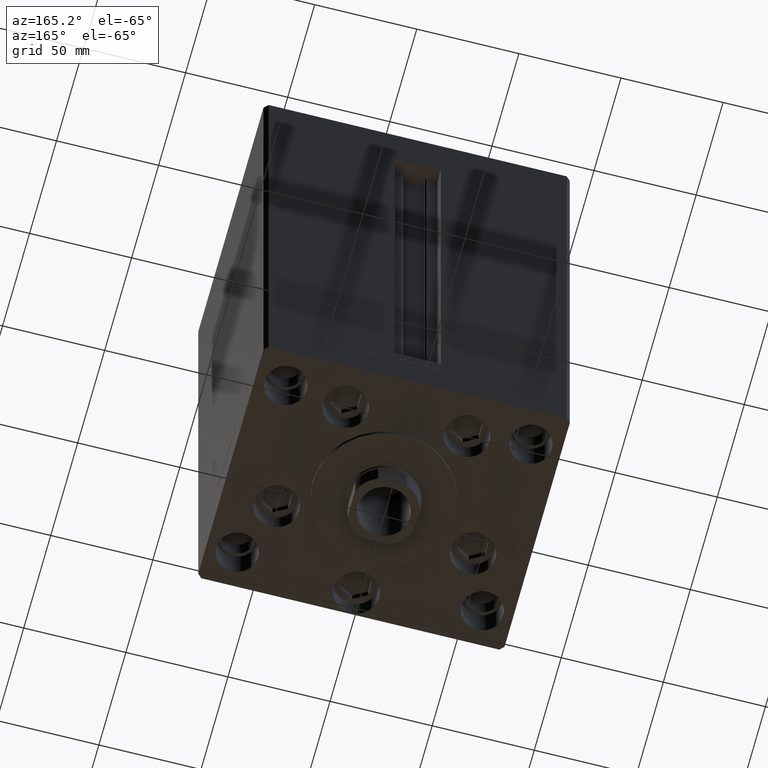
[diagram: clean part render]
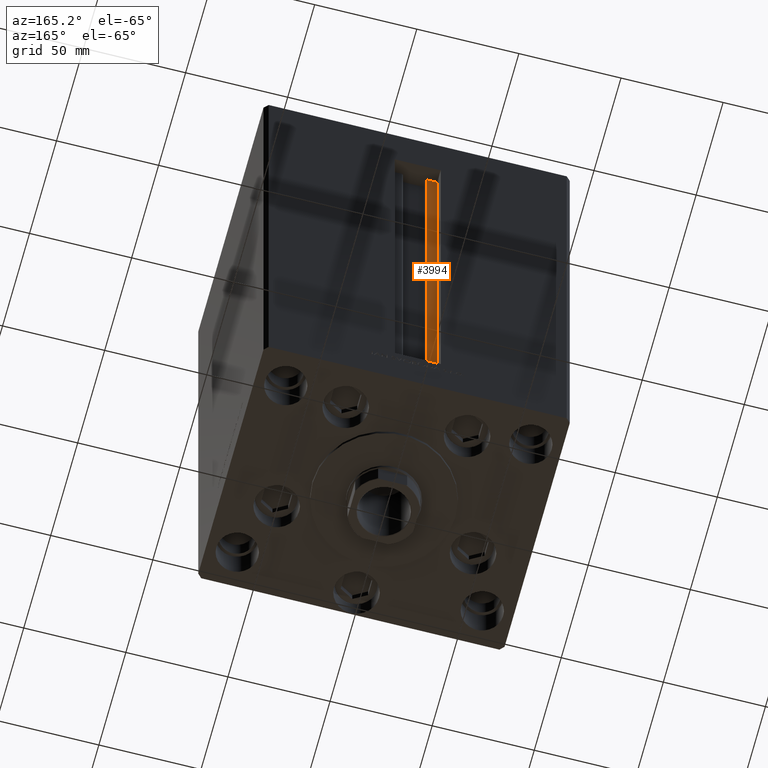
[diagram: same view with one face highlighted and labeled with its STEP entity id]
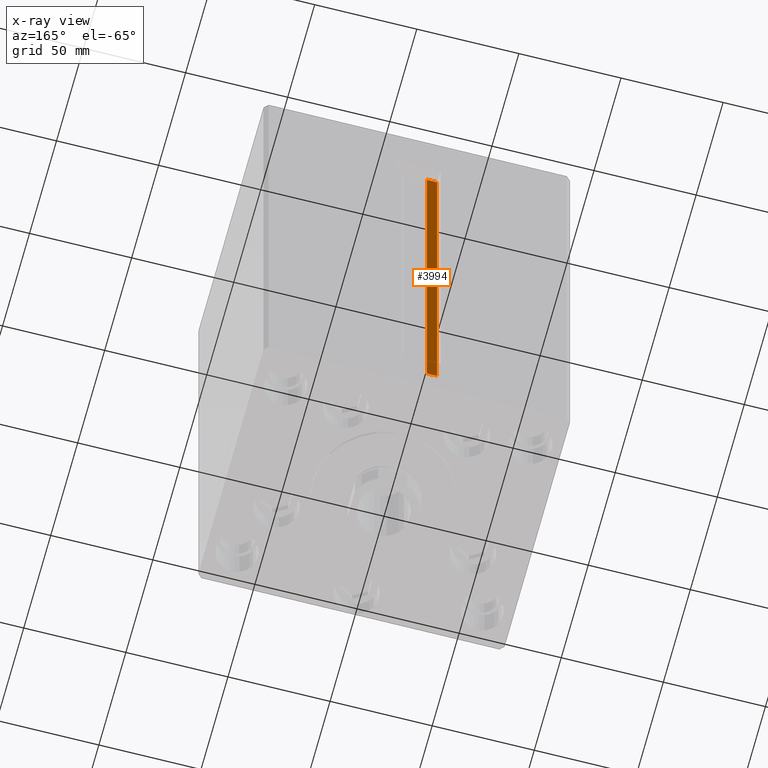
[diagram: x-ray of the same camera — body ghosted, the highlighted face saturated]
A machine part, auxiliary view. The second image highlights one B-rep face of the part: STEP entity #3994.
The next image is the same camera in x-ray: the body ghosted, the highlighted face saturated — about 0% of this face is hidden behind the body in this view.
In plain terms, the highlighted planar face has unit normal (0, -1, 0).
Its self-contained STEP definition (entity closure, byte-faithful):
#347 = DIRECTION ( 'NONE',  ( 1.000000000000000000, -0.000000000000000000, -0.000000000000000000 ) ) ;
#884 = DIRECTION ( 'NONE',  ( 0.000000000000000000, 0.000000000000000000, -1.000000000000000000 ) ) ;
#2376 = VERTEX_POINT ( 'NONE', #5958 ) ;
#3125 = FACE_OUTER_BOUND ( 'NONE', #30242, .T. ) ;
#3607 = CARTESIAN_POINT ( 'NONE',  ( -6.183333333334001480, 55.99999999999999289, 0.000000000000000000 ) ) ;
#3994 = ADVANCED_FACE ( 'NONE', ( #3125 ), #40278, .F. ) ;
#5308 = CARTESIAN_POINT ( 'NONE',  ( -6.183333333334001480, 55.99999999999999289, 0.000000000000000000 ) ) ;
#5958 = CARTESIAN_POINT ( 'NONE',  ( -6.183333333334001480, 55.99999999999999289, 0.000000000000000000 ) ) ;
#6802 = VECTOR ( 'NONE', #17207, 1000.000000000000000 ) ;
#8064 = DIRECTION ( 'NONE',  ( -1.000000000000000000, 0.000000000000000000, 0.000000000000000000 ) ) ;
#9837 = ORIENTED_EDGE ( 'NONE', *, *, #21738, .F. ) ;
#11781 = CARTESIAN_POINT ( 'NONE',  ( -6.183333333334001480, 55.99999999999999289, 217.0000000000000000 ) ) ;
#11984 = VERTEX_POINT ( 'NONE', #37346 ) ;
#13914 = CARTESIAN_POINT ( 'NONE',  ( -11.25000000000000178, 55.99999999999999289, 217.0000000000000000 ) ) ;
#14187 = DIRECTION ( 'NONE',  ( -0.000000000000000000, -0.000000000000000000, 1.000000000000000000 ) ) ;
#14212 = LINE ( 'NONE', #24873, #6802 ) ;
#14394 = EDGE_CURVE ( 'NONE', #11984, #39744, #14212, .T. ) ;
#16882 = ORIENTED_EDGE ( 'NONE', *, *, #14394, .T. ) ;
#17207 = DIRECTION ( 'NONE',  ( -0.000000000000000000, -0.000000000000000000, 1.000000000000000000 ) ) ;
#19204 = DIRECTION ( 'NONE',  ( 0.000000000000000000, -1.000000000000000000, -0.000000000000000000 ) ) ;
#20492 = EDGE_CURVE ( 'NONE', #42602, #39744, #30366, .T. ) ;
#21738 = EDGE_CURVE ( 'NONE', #11984, #2376, #31548, .T. ) ;
#23865 = CARTESIAN_POINT ( 'NONE',  ( -6.183333333334001480, 55.99999999999999289, 0.000000000000000000 ) ) ;
#24873 = CARTESIAN_POINT ( 'NONE',  ( -11.25000000000000178, 55.99999999999999289, 0.000000000000000000 ) ) ;
#28782 = AXIS2_PLACEMENT_3D ( 'NONE', #3607, #19204, #884 ) ;
#29631 = ORIENTED_EDGE ( 'NONE', *, *, #20492, .F. ) ;
#30242 = EDGE_LOOP ( 'NONE', ( #39779, #9837, #16882, #29631 ) ) ;
#30366 = LINE ( 'NONE', #30611, #46177 ) ;
#30611 = CARTESIAN_POINT ( 'NONE',  ( 0.000000000000000000, 55.99999999999999289, 217.0000000000000000 ) ) ;
#31548 = LINE ( 'NONE', #23865, #46205 ) ;
#37346 = CARTESIAN_POINT ( 'NONE',  ( -11.25000000000000178, 55.99999999999999289, 0.000000000000000000 ) ) ;
#39237 = LINE ( 'NONE', #5308, #39570 ) ;
#39570 = VECTOR ( 'NONE', #14187, 1000.000000000000000 ) ;
#39744 = VERTEX_POINT ( 'NONE', #13914 ) ;
#39779 = ORIENTED_EDGE ( 'NONE', *, *, #43793, .F. ) ;
#40278 = PLANE ( 'NONE',  #28782 ) ;
#42602 = VERTEX_POINT ( 'NONE', #11781 ) ;
#43793 = EDGE_CURVE ( 'NONE', #2376, #42602, #39237, .T. ) ;
#46177 = VECTOR ( 'NONE', #8064, 1000.000000000000000 ) ;
#46205 = VECTOR ( 'NONE', #347, 1000.000000000000000 ) ;